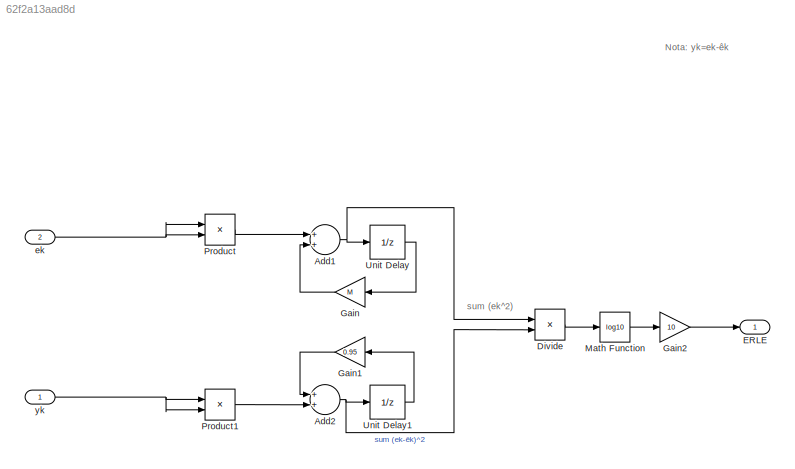
MODEL slx_62f2a13aad8d
KIND model
BLOCK [Sum] Add1
  InputSameDT = off
  OutDataTypeStr = Inherit: Inherit via internal rule
  Ports = [2, 1]
  SaturateOnIntegerOverflow = off
BLOCK [Sum] Add2
  InputSameDT = off
  OutDataTypeStr = Inherit: Inherit via internal rule
  Ports = [2, 1]
  SaturateOnIntegerOverflow = off
BLOCK [Product] Divide
  InputSameDT = off
  Inputs = */
  OutDataTypeStr = Inherit: Inherit via internal rule
  Ports = [2, 1]
  RndMeth = Floor
  SaturateOnIntegerOverflow = off
BLOCK [Outport] ERLE
  IconDisplay = Port number
BLOCK [Gain] Gain
  Gain = M
  OutDataTypeStr = Inherit: Inherit via internal rule
  ParamDataTypeStr = Inherit: Inherit via internal rule
  SampleTime = M
  SaturateOnIntegerOverflow = off
BLOCK [Gain] Gain1
  Gain = 0.95
  OutDataTypeStr = Inherit: Inherit via internal rule
  ParamDataTypeStr = Inherit: Inherit via internal rule
  SaturateOnIntegerOverflow = off
BLOCK [Gain] Gain2
  Gain = 10
  OutDataTypeStr = Inherit: Inherit via internal rule
  ParamDataTypeStr = Inherit: Inherit via internal rule
  SaturateOnIntegerOverflow = off
BLOCK [Math] Math Function
  Operator = log10
  Ports = [1, 1]
BLOCK [Product] Product
  InputSameDT = off
  OutDataTypeStr = Inherit: Inherit via internal rule
  Ports = [2, 1]
  RndMeth = Floor
  SaturateOnIntegerOverflow = off
BLOCK [Product] Product1
  InputSameDT = off
  OutDataTypeStr = Inherit: Inherit via internal rule
  Ports = [2, 1]
  RndMeth = Floor
  SaturateOnIntegerOverflow = off
BLOCK [UnitDelay] Unit Delay
  InputProcessing = Elements as channels (sample based)
  SampleTime = -1
BLOCK [UnitDelay] Unit Delay1
  InputProcessing = Elements as channels (sample based)
  SampleTime = -1
BLOCK [Inport] ek
  IconDisplay = Port number
  Port = 2
BLOCK [Inport] yk
  IconDisplay = Port number
ANNOTATION (root): Nota: yk=ek-êk
ANNOTATION (root): sum (ek^2)
NET Add1:1 -> Divide:1, Unit Delay:1
NET Add2:1 -> Divide:2, Unit Delay1:1
LINE Divide:1 -> Math Function:1
LINE Gain1:1 -> Add2:1
LINE Gain2:1 -> ERLE:1
LINE Gain:1 -> Add1:2
LINE Math Function:1 -> Gain2:1
LINE Product1:1 -> Add2:2
LINE Product:1 -> Add1:1
LINE Unit Delay1:1 -> Gain1:1
LINE Unit Delay:1 -> Gain:1
NET ek:1 -> Product:1, Product:2
NET yk:1 -> Product1:1, Product1:2
note: NET lines group one-source signal fan-out (src -> all destinations, sorted); 1:1 wires keep LINE
